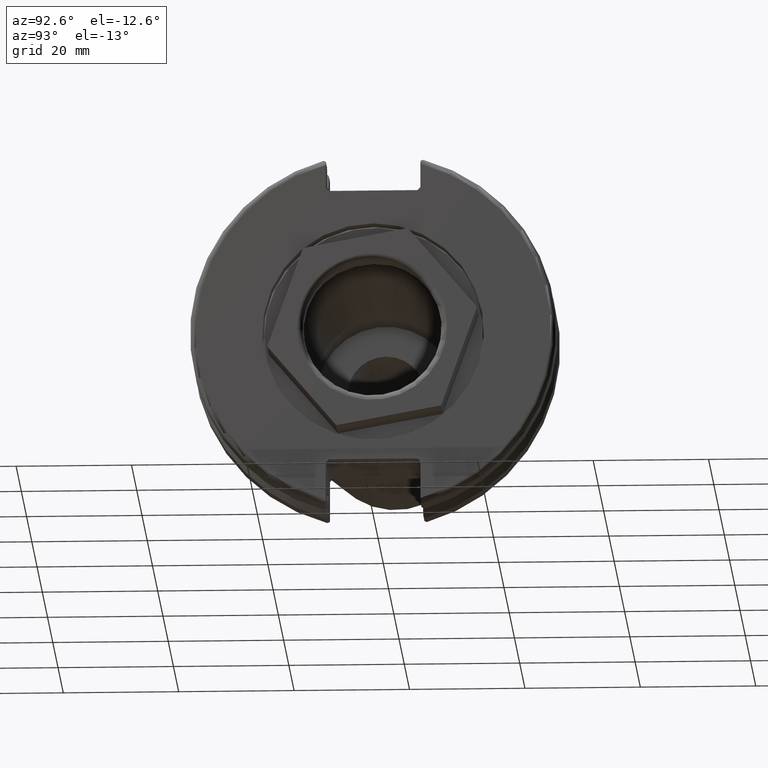
[diagram: clean part render]
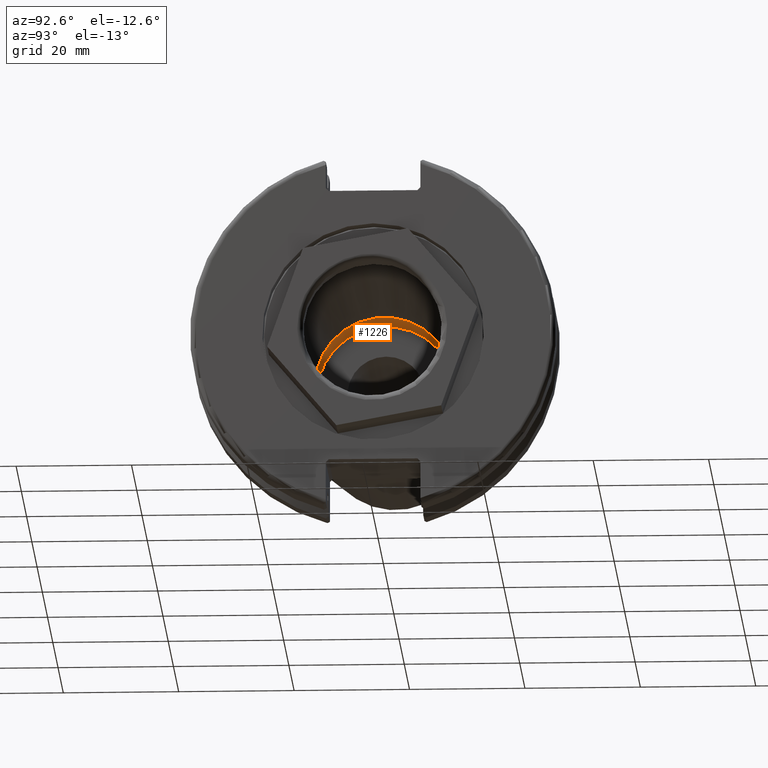
[diagram: same view with one face highlighted and labeled with its STEP entity id]
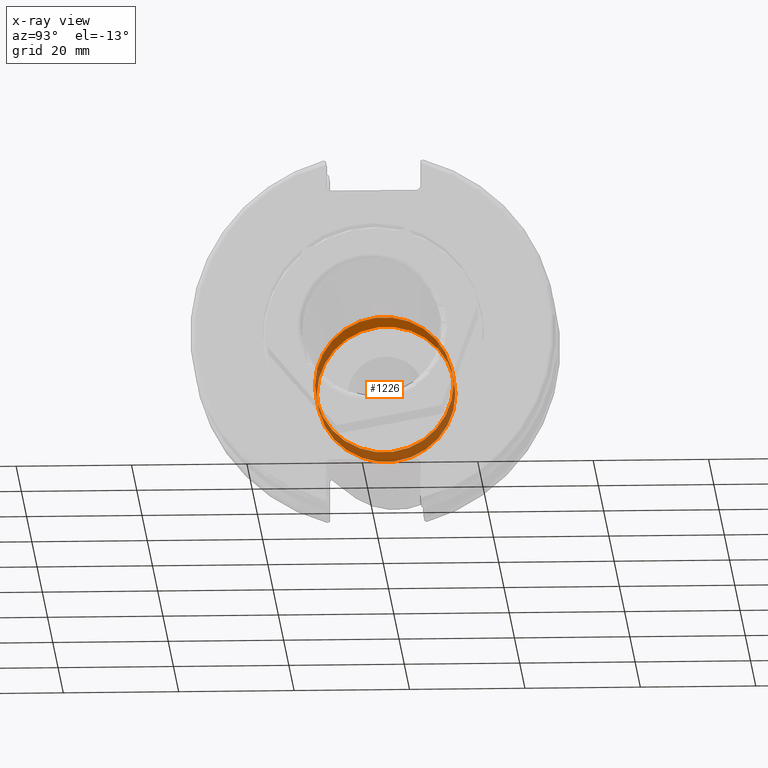
[diagram: x-ray of the same camera — body ghosted, the highlighted face saturated]
A machine part, auxiliary view. The second image highlights one B-rep face of the part: STEP entity #1226.
The next image is the same camera in x-ray: the body ghosted, the highlighted face saturated — about 56% of this face is hidden behind the body in this view.
In plain terms, the highlighted cylindrical surface (bore or boss wall) has radius 12 mm, axis along (-1, 0, 0).
Its self-contained STEP definition (entity closure, byte-faithful):
#132=FACE_OUTER_BOUND('',#207,.T.);
#207=EDGE_LOOP('',(#848,#849,#850,#851));
#294=LINE('',#1893,#385);
#385=VECTOR('',#1524,12.);
#477=CIRCLE('',#1370,12.);
#478=CIRCLE('',#1372,12.);
#538=VERTEX_POINT('',#1888);
#539=VERTEX_POINT('',#1892);
#661=EDGE_CURVE('',#538,#538,#477,.T.);
#662=EDGE_CURVE('',#538,#539,#294,.T.);
#663=EDGE_CURVE('',#539,#539,#478,.T.);
#848=ORIENTED_EDGE('',*,*,#661,.F.);
#849=ORIENTED_EDGE('',*,*,#662,.T.);
#850=ORIENTED_EDGE('',*,*,#663,.T.);
#851=ORIENTED_EDGE('',*,*,#662,.F.);
#1209=CYLINDRICAL_SURFACE('',#1371,12.);
#1226=ADVANCED_FACE('',(#132),#1209,.F.);
#1370=AXIS2_PLACEMENT_3D('',#1890,#1520,#1521);
#1371=AXIS2_PLACEMENT_3D('',#1891,#1522,#1523);
#1372=AXIS2_PLACEMENT_3D('',#1894,#1525,#1526);
#1520=DIRECTION('center_axis',(-1.,0.,0.));
#1521=DIRECTION('ref_axis',(0.,0.,1.));
#1522=DIRECTION('center_axis',(-1.,0.,0.));
#1523=DIRECTION('ref_axis',(0.,1.,0.));
#1524=DIRECTION('',(-1.,0.,0.));
#1525=DIRECTION('center_axis',(-1.,0.,0.));
#1526=DIRECTION('ref_axis',(0.,0.,1.));
#1888=CARTESIAN_POINT('',(-23.4114788895367,-12.,1.46957615897682E-15));
#1890=CARTESIAN_POINT('Origin',(-23.4114788895367,0.,0.));
#1891=CARTESIAN_POINT('Origin',(-27.1807394447684,0.,0.));
#1892=CARTESIAN_POINT('',(-30.95,-12.,1.46957615897682E-15));
#1893=CARTESIAN_POINT('',(-27.1807394447684,-12.,1.46957615897682E-15));
#1894=CARTESIAN_POINT('Origin',(-30.95,0.,0.));